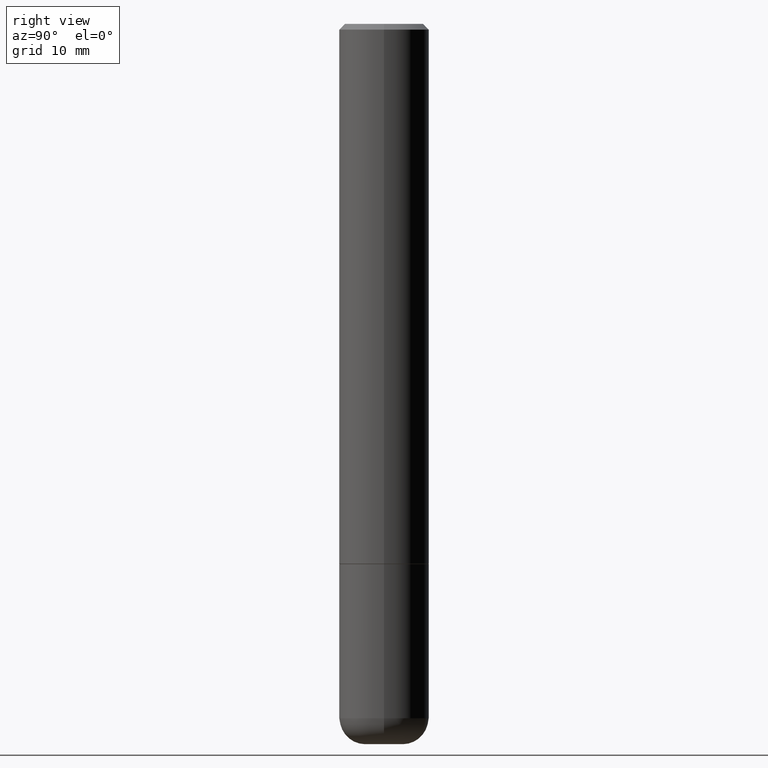
[diagram: clean part render]
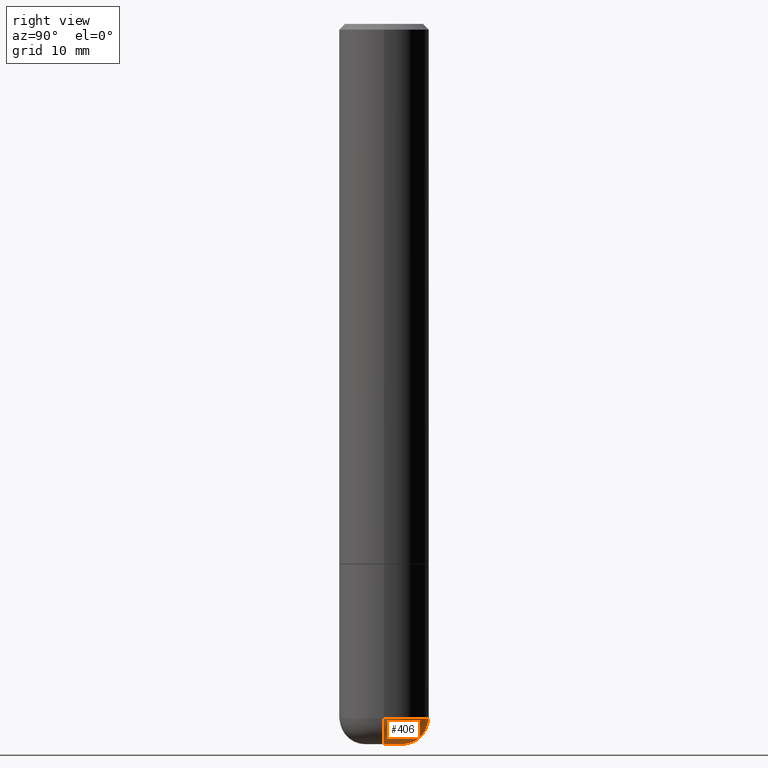
[diagram: same view with one face highlighted and labeled with its STEP entity id]
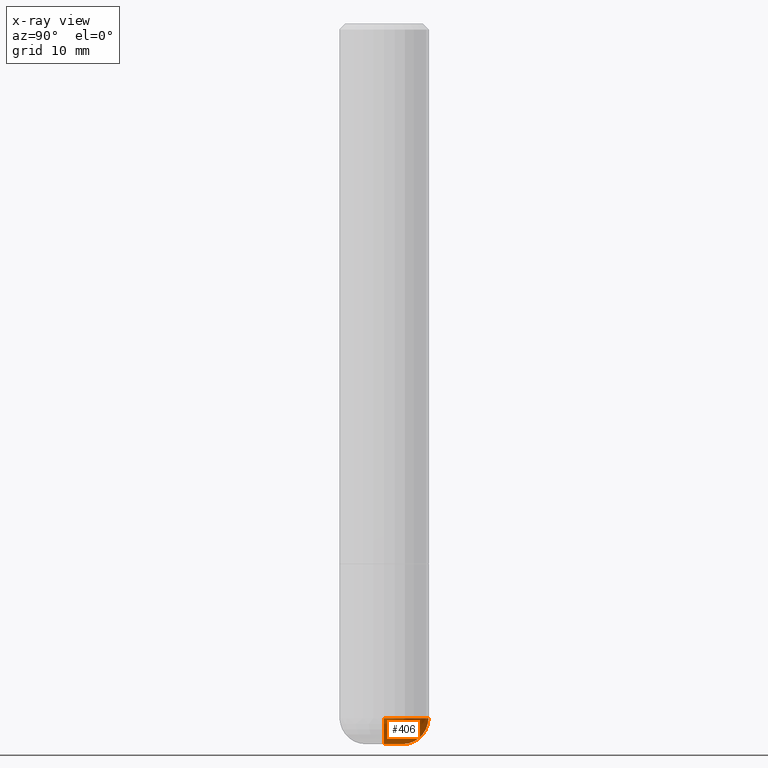
[diagram: x-ray of the same camera — body ghosted, the highlighted face saturated]
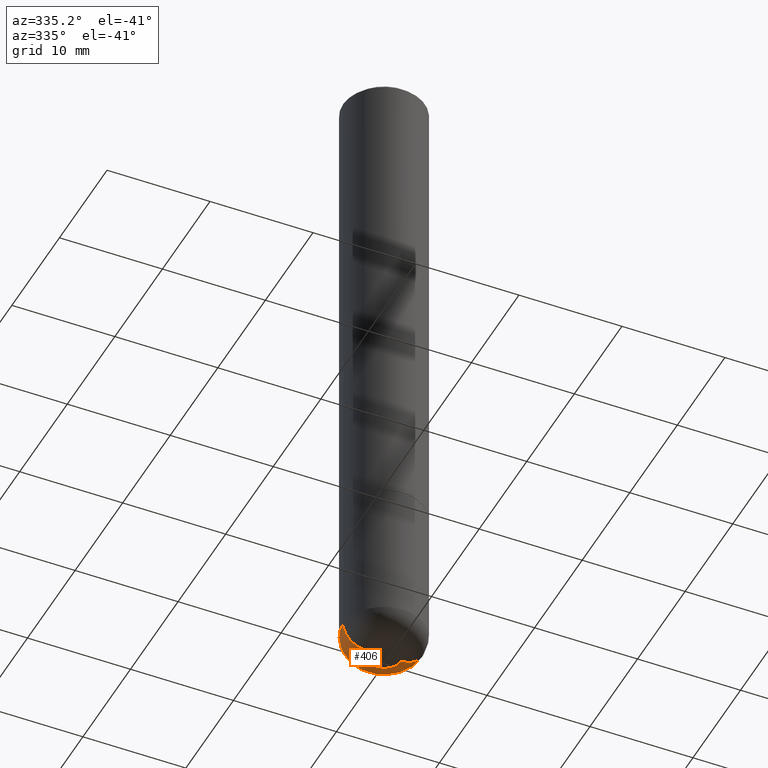
[diagram: same view with one face highlighted and labeled with its STEP entity id]
A machine part, right view. The second image highlights one B-rep face of the part: STEP entity #406.
The next image is the same camera in x-ray: the body ghosted, the highlighted face saturated — about 0% of this face is hidden behind the body in this view.
A second angle (auxiliary view) of the same face is appended — the face is thin or edge-on in the first view.
In plain terms, the highlighted toroidal blend (fillet) surface has major radius 1.6828 mm and minor (blend) radius 2.286 mm.
Its self-contained STEP definition (entity closure, byte-faithful):
#4 = CARTESIAN_POINT ( 'NONE',  ( -0.06625000000000001721, -7.781107893326811349E-15, -2.500000000000000000 ) ) ;
#5 = EDGE_CURVE ( 'NONE', #358, #157, #407, .T. ) ;
#19 = FACE_OUTER_BOUND ( 'NONE', #60, .T. ) ;
#32 = DIRECTION ( 'NONE',  ( 1.000000000000000000, -6.982962677686268288E-15, 0.000000000000000000 ) ) ;
#45 = CARTESIAN_POINT ( 'NONE',  ( 5.893579822906179826E-29, -8.414470026611981678E-15, -2.410000000000000142 ) ) ;
#50 = AXIS2_PLACEMENT_3D ( 'NONE', #220, #62, #292 ) ;
#60 = EDGE_LOOP ( 'NONE', ( #301, #396, #318, #103 ) ) ;
#62 = DIRECTION ( 'NONE',  ( -6.982962677686266711E-15, -1.000000000000000000, 3.491481338843145583E-15 ) ) ;
#82 = TOROIDAL_SURFACE ( 'NONE', #334, 0.06625000000000001721, 0.08999999999999992728 ) ;
#84 = AXIS2_PLACEMENT_3D ( 'NONE', #322, #288, #32 ) ;
#93 = CIRCLE ( 'NONE', #335, 0.08999999999999992728 ) ;
#103 = ORIENTED_EDGE ( 'NONE', *, *, #175, .F. ) ;
#112 = CIRCLE ( 'NONE', #137, 0.1562500000000000000 ) ;
#116 = DIRECTION ( 'NONE',  ( 1.000000000000000000, -6.982962677686262766E-15, 0.000000000000000000 ) ) ;
#118 = VERTEX_POINT ( 'NONE', #242 ) ;
#125 = EDGE_CURVE ( 'NONE', #118, #410, #112, .T. ) ;
#137 = AXIS2_PLACEMENT_3D ( 'NONE', #278, #416, #116 ) ;
#157 = VERTEX_POINT ( 'NONE', #4 ) ;
#175 = EDGE_CURVE ( 'NONE', #358, #118, #284, .T. ) ;
#186 = CARTESIAN_POINT ( 'NONE',  ( 0.06625000000000001721, -9.191324624504579954E-15, -2.500000000000000000 ) ) ;
#220 = CARTESIAN_POINT ( 'NONE',  ( 0.06625000000000001721, -8.877091304008696690E-15, -2.410000000000000142 ) ) ;
#242 = CARTESIAN_POINT ( 'NONE',  ( 0.1562499999999999722, -9.505557945000458485E-15, -2.410000000000000142 ) ) ;
#272 = DIRECTION ( 'NONE',  ( -2.445468806185136597E-29, 3.491481338843145583E-15, 1.000000000000000000 ) ) ;
#278 = CARTESIAN_POINT ( 'NONE',  ( 5.893579822906179826E-29, -8.414470026611981678E-15, -2.410000000000000142 ) ) ;
#279 = DIRECTION ( 'NONE',  ( 1.000000000000000000, -6.982962677686265922E-15, 4.883557194083112340E-29 ) ) ;
#282 = CARTESIAN_POINT ( 'NONE',  ( -0.06625000000000001721, -7.943735464170915873E-15, -2.410000000000000142 ) ) ;
#284 = CIRCLE ( 'NONE', #50, 0.08999999999999992728 ) ;
#285 = DIRECTION ( 'NONE',  ( 7.105427357601001859E-15, 1.000000000000000000, -3.491481338843145583E-15 ) ) ;
#288 = DIRECTION ( 'NONE',  ( -2.445468806185136597E-29, 3.491481338843145583E-15, 1.000000000000000000 ) ) ;
#292 = DIRECTION ( 'NONE',  ( 1.000000000000000000, -6.982962677686273810E-15, 0.000000000000000000 ) ) ;
#301 = ORIENTED_EDGE ( 'NONE', *, *, #5, .T. ) ;
#304 = CARTESIAN_POINT ( 'NONE',  ( -0.1562499999999999722, -7.304247001986825138E-15, -2.410000000000000142 ) ) ;
#318 = ORIENTED_EDGE ( 'NONE', *, *, #125, .F. ) ;
#322 = CARTESIAN_POINT ( 'NONE',  ( 6.113672015462842613E-29, -8.728703347107864943E-15, -2.500000000000000000 ) ) ;
#334 = AXIS2_PLACEMENT_3D ( 'NONE', #45, #272, #279 ) ;
#335 = AXIS2_PLACEMENT_3D ( 'NONE', #282, #285, #387 ) ;
#340 = EDGE_CURVE ( 'NONE', #157, #410, #93, .T. ) ;
#358 = VERTEX_POINT ( 'NONE', #186 ) ;
#387 = DIRECTION ( 'NONE',  ( -1.000000000000000000, 7.105427357601006592E-15, 0.000000000000000000 ) ) ;
#396 = ORIENTED_EDGE ( 'NONE', *, *, #340, .T. ) ;
#406 = ADVANCED_FACE ( 'NONE', ( #19 ), #82, .T. ) ;
#407 = CIRCLE ( 'NONE', #84, 0.06625000000000001721 ) ;
#410 = VERTEX_POINT ( 'NONE', #304 ) ;
#416 = DIRECTION ( 'NONE',  ( -2.445468806185136597E-29, 3.491481338843145583E-15, 1.000000000000000000 ) ) ;